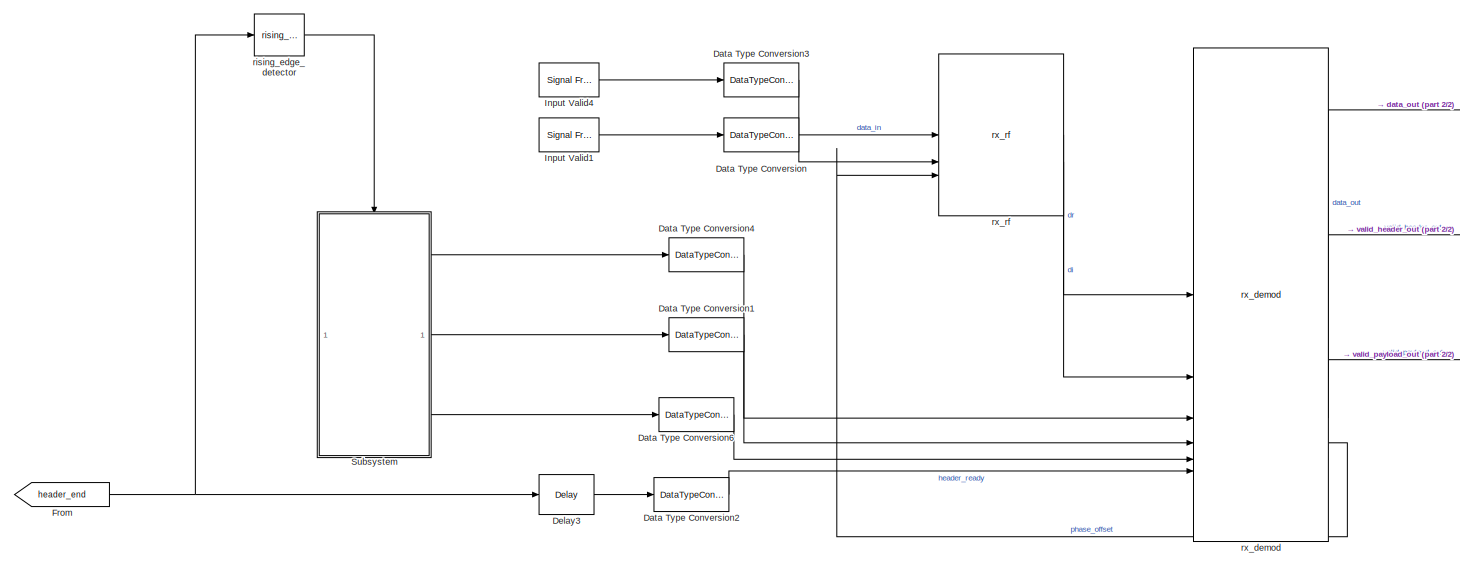
[diagram: root canvas - part 1/2, left side, full height]
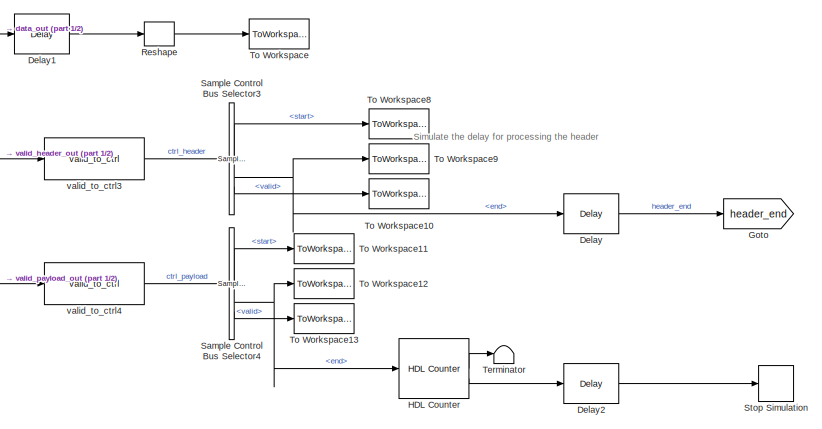
[diagram: root canvas - part 2/2, middle right region]
MODEL slx_099644b9d287
KIND model
CONFIG AbsTol = auto
CONFIG EnableMultiTasking = off
CONFIG FixedStep = auto
CONFIG MaxStep = auto
CONFIG MinStep = auto
CONFIG RelTol = 1e-3
CONFIG SampleTimeConstraint = Unconstrained
CONFIG SolverName = FixedStepDiscrete
CONFIG StartTime = 0.0
CONFIG StopTime = stopTime
WORKSPACE source: mxarray member
WORKSPACE RxTree: serdes.internal.ibisami.ami.SerDesTree (value not decoded)
BLOCK [DataTypeConversion] Data Type Conversion
  OutDataTypeStr = boolean
  RndMeth = Floor
  SaturateOnIntegerOverflow = off
BLOCK [DataTypeConversion] Data Type Conversion1
  OutDataTypeStr = uint8
  RndMeth = Floor
  SaturateOnIntegerOverflow = off
BLOCK [DataTypeConversion] Data Type Conversion2
  OutDataTypeStr = boolean
  RndMeth = Floor
  SaturateOnIntegerOverflow = off
BLOCK [DataTypeConversion] Data Type Conversion3
  OutDataTypeStr = CONST.ipCoreDataType
  RndMeth = Floor
  SaturateOnIntegerOverflow = off
BLOCK [DataTypeConversion] Data Type Conversion4
  OutDataTypeStr = uint8
  RndMeth = Floor
  SaturateOnIntegerOverflow = off
BLOCK [DataTypeConversion] Data Type Conversion6
  OutDataTypeStr = boolean
  RndMeth = Floor
  SaturateOnIntegerOverflow = off
BLOCK [Delay] Delay
  DelayLength = 200
  InitialCondition = 0
  InputPortMap = u0
  UseCircularBuffer = on
  UserDataPersistent = on
BLOCK [Delay] Delay1
  DelayLength = 1
  InitialCondition = 0
  InputPortMap = u0
  UseCircularBuffer = on
  UserDataPersistent = on
BLOCK [Delay] Delay2
  DelayLength = 500
  InitialCondition = 0
  InputPortMap = u0
  UseCircularBuffer = on
  UserDataPersistent = on
BLOCK [Delay] Delay3
  DelayLength = 1
  InitialCondition = 0
  InputPortMap = u0
  UseCircularBuffer = on
  UserDataPersistent = on
BLOCK [From] From
  GotoTag = header_end
BLOCK [Goto] Goto
  GotoTag = header_end
BLOCK [Reference] HDL Counter  REF=hdlsllib/Sources/HDL Counter
  SourceBlock = hdlsllib/Sources/HDL Counter
  SourceType = HDL Counter
BLOCK [Reference] Input Valid1  REF=dspsrcs4/Signal From
Workspace
  SourceBlock = dspsrcs4/Signal From\nWorkspace
  SourceType = Signal From Workspace
BLOCK [Reference] Input Valid4  REF=dspsrcs4/Signal From
Workspace
  SourceBlock = dspsrcs4/Signal From\nWorkspace
  SourceType = Signal From Workspace
BLOCK [Reshape] Reshape
BLOCK [Reference] Sample Control Bus Selector3  REF=whdlutilities/Sample Control
Bus Selector
  SourceBlock = whdlutilities/Sample Control\nBus Selector
BLOCK [Reference] Sample Control Bus Selector4  REF=whdlutilities/Sample Control
Bus Selector
  SourceBlock = whdlutilities/Sample Control\nBus Selector
BLOCK [Stop] Stop Simulation
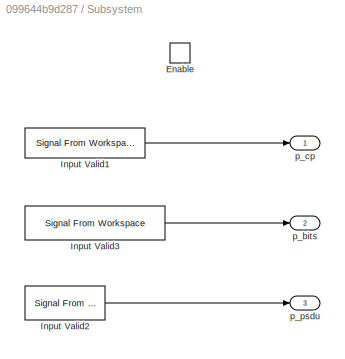
BLOCK [SubSystem] Subsystem
BLOCK [EnablePort] Subsystem/Enable
BLOCK [Reference] Subsystem/Input Valid1  REF=dspsrcs4/Signal From
Workspace
  SourceBlock = dspsrcs4/Signal From\nWorkspace
  SourceType = Signal From Workspace
BLOCK [Reference] Subsystem/Input Valid2  REF=dspsrcs4/Signal From
Workspace
  SourceBlock = dspsrcs4/Signal From\nWorkspace
  SourceType = Signal From Workspace
BLOCK [Reference] Subsystem/Input Valid3  REF=dspsrcs4/Signal From
Workspace
  SourceBlock = dspsrcs4/Signal From\nWorkspace
  SourceType = Signal From Workspace
BLOCK [Outport] Subsystem/p_bits
  Port = 2
BLOCK [Outport] Subsystem/p_cp
BLOCK [Outport] Subsystem/p_psdu
  Port = 3
BLOCK [Terminator] Terminator
BLOCK [ToWorkspace] To Workspace
  MaxDataPoints = inf
  SampleTime = 1/CONST.fPHY
  Save2DSignal = 2-D array (concatenate along first dimension)
  VariableName = dataOut
BLOCK [ToWorkspace] To Workspace10
  MaxDataPoints = inf
  SampleTime = 1/CONST.fPHY
  Save2DSignal = 2-D array (concatenate along first dimension)
  VariableName = validOut
BLOCK [ToWorkspace] To Workspace11
  MaxDataPoints = inf
  SampleTime = 1/CONST.fPHY
  Save2DSignal = 2-D array (concatenate along first dimension)
  VariableName = startOut1
BLOCK [ToWorkspace] To Workspace12
  MaxDataPoints = inf
  SampleTime = 1/CONST.fPHY
  Save2DSignal = 2-D array (concatenate along first dimension)
  VariableName = endOut1
BLOCK [ToWorkspace] To Workspace13
  MaxDataPoints = inf
  SampleTime = 1/CONST.fPHY
  Save2DSignal = 2-D array (concatenate along first dimension)
  VariableName = validOut1
BLOCK [ToWorkspace] To Workspace8
  MaxDataPoints = inf
  SampleTime = 1/CONST.fPHY
  Save2DSignal = 2-D array (concatenate along first dimension)
  VariableName = startOut
BLOCK [ToWorkspace] To Workspace9
  MaxDataPoints = inf
  SampleTime = 1/CONST.fPHY
  Save2DSignal = 2-D array (concatenate along first dimension)
  VariableName = endOut
BLOCK [Reference] rising_edge_detector  REF=HDL_ieee_8021513/rising_edge_detector
  SourceBlock = HDL_ieee_8021513/rising_edge_detector
  SourceProductName = HDL IEEE 8021513
  SourceType = SubSystem
BLOCK [Reference] rx_demod  REF=HDL_ieee_8021513/rx_demod
  SourceBlock = HDL_ieee_8021513/rx_demod
  SourceProductName = HDL IEEE 8021513
  SourceType = SubSystem
BLOCK [Reference] rx_rf  REF=HDL_ieee_8021513/rx_rf
  SourceBlock = HDL_ieee_8021513/rx_rf
  SourceProductName = HDL IEEE 8021513
  SourceType = SubSystem
BLOCK [Reference] valid_to_ctrl3  REF=HDL_ieee_8021513/valid_to_ctrl
  SourceBlock = HDL_ieee_8021513/valid_to_ctrl
  SourceProductName = HDL IEEE 8021513
  SourceType = SubSystem
BLOCK [Reference] valid_to_ctrl4  REF=HDL_ieee_8021513/valid_to_ctrl
  SourceBlock = HDL_ieee_8021513/valid_to_ctrl
  SourceProductName = HDL IEEE 8021513
  SourceType = SubSystem
ANNOTATION (root): Simulate the delay for processing the header
LINE Data Type Conversion1:1 -> rx_demod:4
LINE Data Type Conversion2:1 -> rx_demod:6
LINE Data Type Conversion3:1 -> rx_rf:1
LINE Data Type Conversion4:1 -> rx_demod:3
LINE Data Type Conversion6:1 -> rx_demod:5
LINE Data Type Conversion:1 -> rx_rf:2
LINE Delay1:1 -> Reshape:1
LINE Delay2:1 -> Stop Simulation:1
LINE Delay3:1 -> Data Type Conversion2:1
LINE Delay:1 -> Goto:1
NET From:1 -> Delay3:1, rising_edge_detector:1
LINE HDL Counter:1 -> Terminator:1
LINE HDL Counter:2 -> Delay2:1
LINE Input Valid1:1 -> Data Type Conversion:1
LINE Input Valid4:1 -> Data Type Conversion3:1
LINE Reshape:1 -> To Workspace:1
LINE Sample Control Bus Selector3:1 -> To Workspace8:1
NET Sample Control Bus Selector3:2 -> Delay:1, To Workspace9:1
LINE Sample Control Bus Selector3:3 -> To Workspace10:1
LINE Sample Control Bus Selector4:1 -> To Workspace11:1
NET Sample Control Bus Selector4:2 -> HDL Counter:1, To Workspace12:1
LINE Sample Control Bus Selector4:3 -> To Workspace13:1
LINE Subsystem/Input Valid1:1 -> Subsystem/p_cp:1
LINE Subsystem/Input Valid2:1 -> Subsystem/p_psdu:1
LINE Subsystem/Input Valid3:1 -> Subsystem/p_bits:1
LINE Subsystem:1 -> Data Type Conversion4:1
LINE Subsystem:2 -> Data Type Conversion1:1
LINE Subsystem:3 -> Data Type Conversion6:1
LINE rising_edge_detector:1 -> Subsystem:enable
LINE rx_demod:1 -> Delay1:1
LINE rx_demod:2 -> valid_to_ctrl3:1
LINE rx_demod:3 -> valid_to_ctrl4:1
LINE rx_demod:4 -> rx_rf:3
LINE rx_rf:1 -> rx_demod:1
LINE rx_rf:2 -> rx_demod:2
LINE valid_to_ctrl3:1 -> Sample Control Bus Selector3:1
LINE valid_to_ctrl4:1 -> Sample Control Bus Selector4:1
note: NET lines group one-source signal fan-out (src -> all destinations, sorted); 1:1 wires keep LINE
